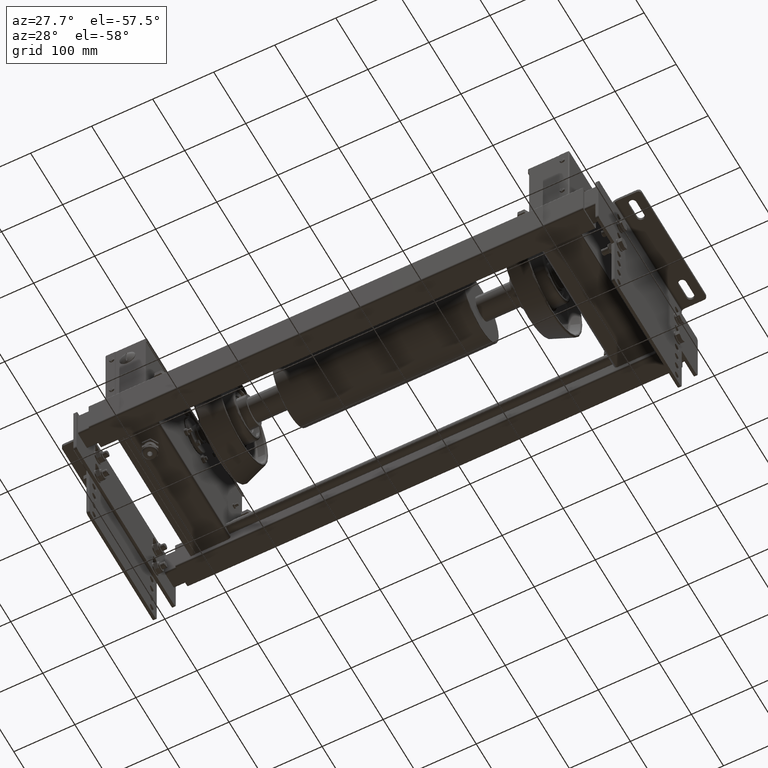
[diagram: clean part render]
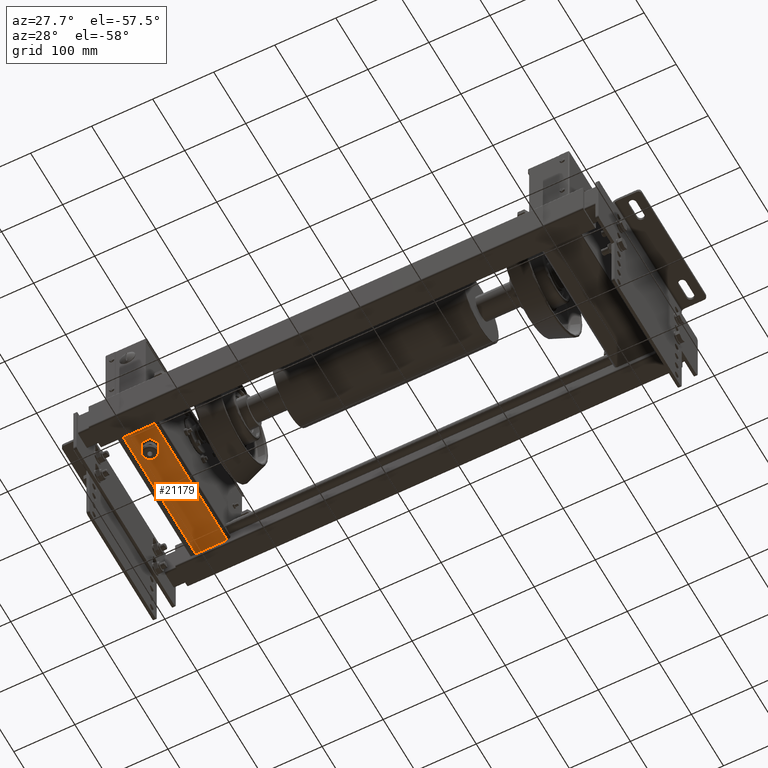
[diagram: same view with one face highlighted and labeled with its STEP entity id]
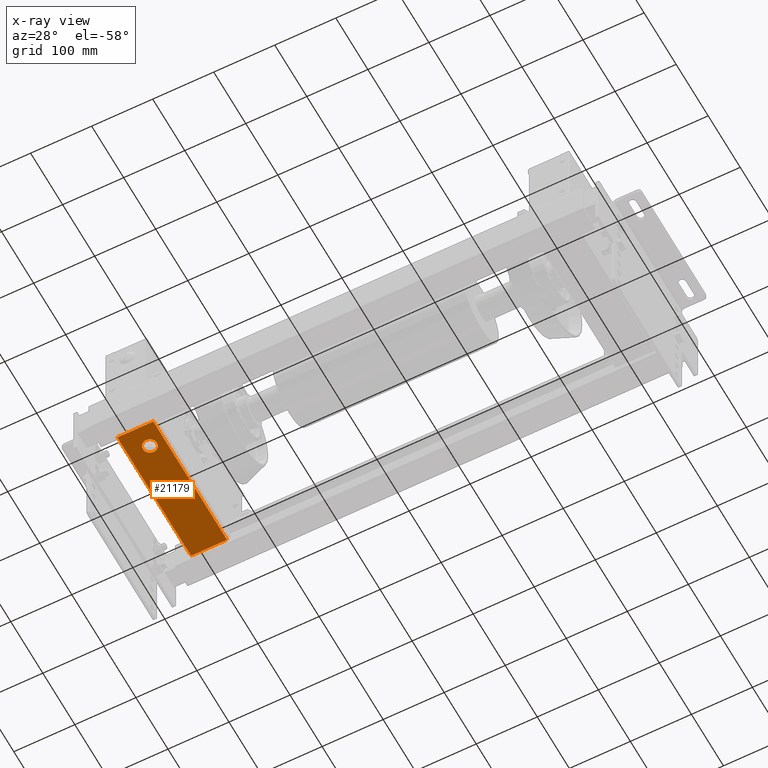
[diagram: x-ray of the same camera — body ghosted, the highlighted face saturated]
A machine part, auxiliary view. The second image highlights one B-rep face of the part: STEP entity #21179.
The next image is the same camera in x-ray: the body ghosted, the highlighted face saturated — about 0% of this face is hidden behind the body in this view.
In plain terms, the highlighted planar face has unit normal (-0, -0, -1).
Its self-contained STEP definition (entity closure, byte-faithful):
#20934=CARTESIAN_POINT('',(79.999999999999091,-84.999999999999773,17.0));
#20935=VERTEX_POINT('',#20934);
#20944=CARTESIAN_POINT('',(79.999999999999091,-84.999999999999773,40.0));
#20945=VERTEX_POINT('',#20944);
#20946=CARTESIAN_POINT('',(79.999999999999091,-84.999999999999773,28.500000000000000));
#20947=DIRECTION('',(0.0,1.0,0.0));
#20948=DIRECTION('',(0.0,0.0,-1.0));
#20949=AXIS2_PLACEMENT_3D('',#20946,#20947,#20948);
#20950=CIRCLE('',#20949,11.500000000000000);
#20951=EDGE_CURVE('',#20945,#20935,#20950,.T.);
#21102=CARTESIAN_POINT('',(-115.000000000000910,-84.999999999999773,4.500000000000000));
#21103=VERTEX_POINT('',#21102);
#21121=CARTESIAN_POINT('',(114.999999999999090,-84.999999999999773,4.500000000000000));
#21122=VERTEX_POINT('',#21121);
#21130=CARTESIAN_POINT('',(114.999999999999090,-84.999999999999773,4.500000000000000));
#21131=DIRECTION('',(-1.0,0.0,0.0));
#21132=VECTOR('',#21131,230.0);
#21133=LINE('',#21130,#21132);
#21134=EDGE_CURVE('',#21122,#21103,#21133,.T.);
#21139=CARTESIAN_POINT('',(114.999999999999090,-84.999999999999773,-1.500000000000000));
#21140=DIRECTION('',(0.0,-1.0,0.0));
#21141=DIRECTION('',(0.0,0.0,-1.0));
#21142=AXIS2_PLACEMENT_3D('',#21139,#21140,#21141);
#21143=PLANE('',#21142);
#21144=ORIENTED_EDGE('',*,*,#21134,.F.);
#21145=CARTESIAN_POINT('',(114.999999999999090,-84.999999999999773,63.500000000000000));
#21146=VERTEX_POINT('',#21145);
#21147=CARTESIAN_POINT('',(114.999999999999090,-84.999999999999773,4.500000000000000));
#21148=DIRECTION('',(0.0,0.0,1.0));
#21149=VECTOR('',#21148,59.0);
#21150=LINE('',#21147,#21149);
#21151=EDGE_CURVE('',#21122,#21146,#21150,.T.);
#21152=ORIENTED_EDGE('',*,*,#21151,.T.);
#21153=CARTESIAN_POINT('',(-115.000000000000910,-84.999999999999773,63.500000000000000));
#21154=VERTEX_POINT('',#21153);
#21155=CARTESIAN_POINT('',(114.999999999999090,-84.999999999999773,63.500000000000000));
#21156=DIRECTION('',(-1.0,0.0,0.0));
#21157=VECTOR('',#21156,230.0);
#21158=LINE('',#21155,#21157);
#21159=EDGE_CURVE('',#21146,#21154,#21158,.T.);
#21160=ORIENTED_EDGE('',*,*,#21159,.T.);
#21161=CARTESIAN_POINT('',(-115.000000000000910,-84.999999999999773,4.500000000000000));
#21162=DIRECTION('',(0.0,0.0,1.0));
#21163=VECTOR('',#21162,59.0);
#21164=LINE('',#21161,#21163);
#21165=EDGE_CURVE('',#21103,#21154,#21164,.T.);
#21166=ORIENTED_EDGE('',*,*,#21165,.F.);
#21167=EDGE_LOOP('',(#21144,#21152,#21160,#21166));
#21168=FACE_OUTER_BOUND('',#21167,.T.);
#21169=CARTESIAN_POINT('',(79.999999999999091,-84.999999999999773,28.500000000000000));
#21170=DIRECTION('',(0.0,1.0,0.0));
#21171=DIRECTION('',(0.0,0.0,-1.0));
#21172=AXIS2_PLACEMENT_3D('',#21169,#21170,#21171);
#21173=CIRCLE('',#21172,11.500000000000000);
#21174=EDGE_CURVE('',#20935,#20945,#21173,.T.);
#21175=ORIENTED_EDGE('',*,*,#21174,.T.);
#21176=ORIENTED_EDGE('',*,*,#20951,.T.);
#21177=EDGE_LOOP('',(#21175,#21176));
#21178=FACE_BOUND('',#21177,.T.);
#21179=ADVANCED_FACE('',(#21168,#21178),#21143,.T.);